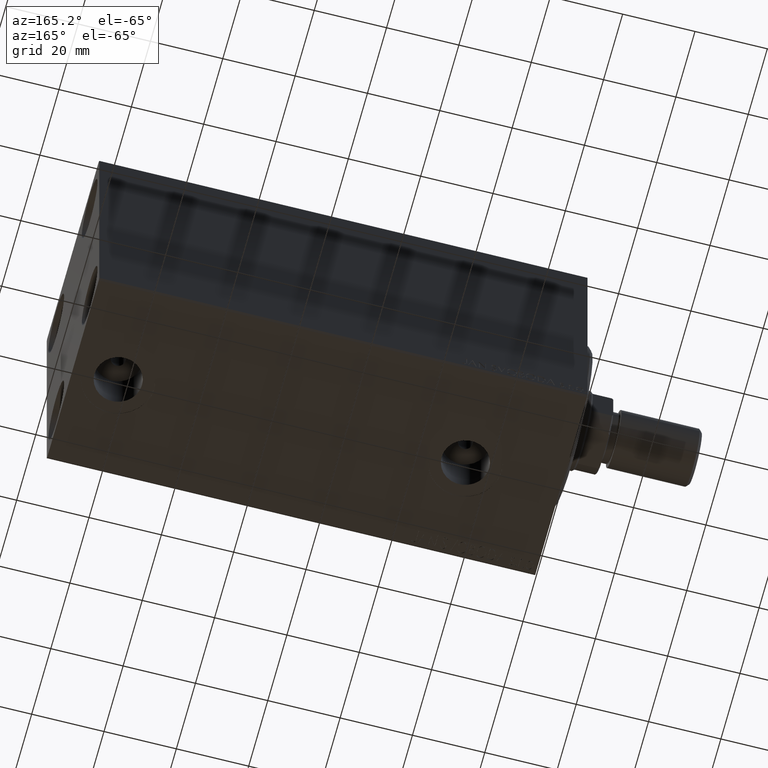
[diagram: clean part render]
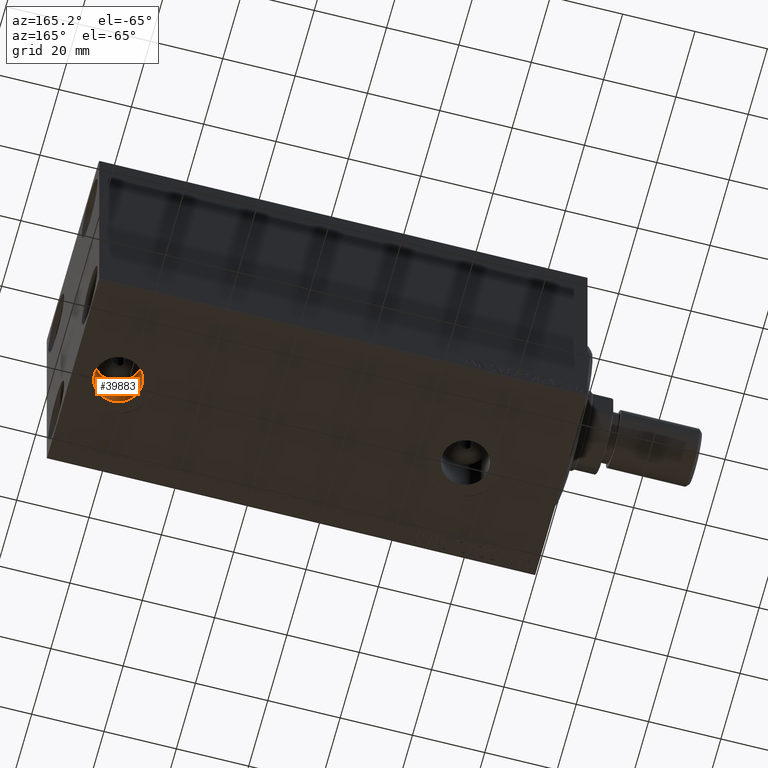
[diagram: same view with one face highlighted and labeled with its STEP entity id]
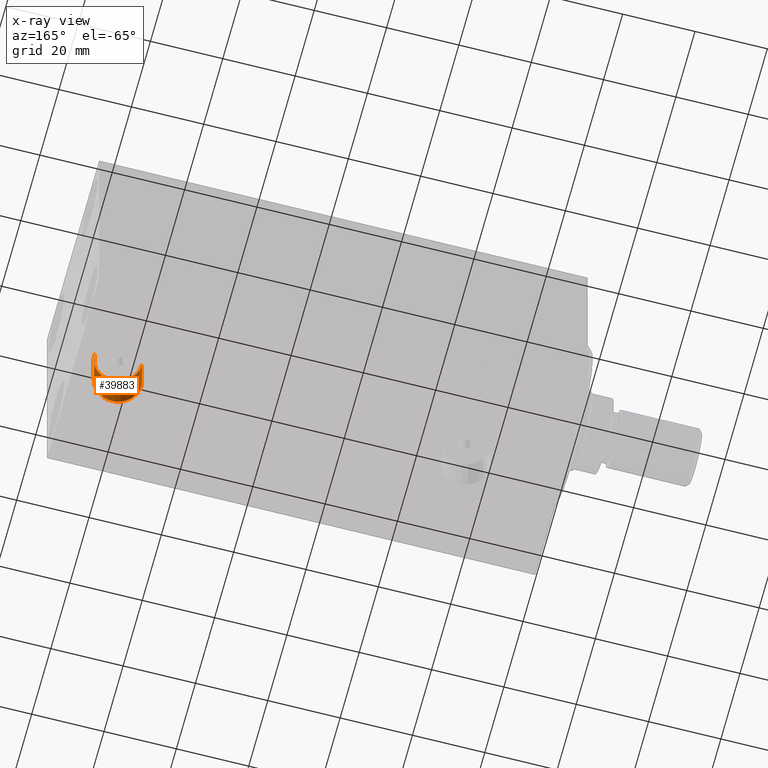
[diagram: x-ray of the same camera — body ghosted, the highlighted face saturated]
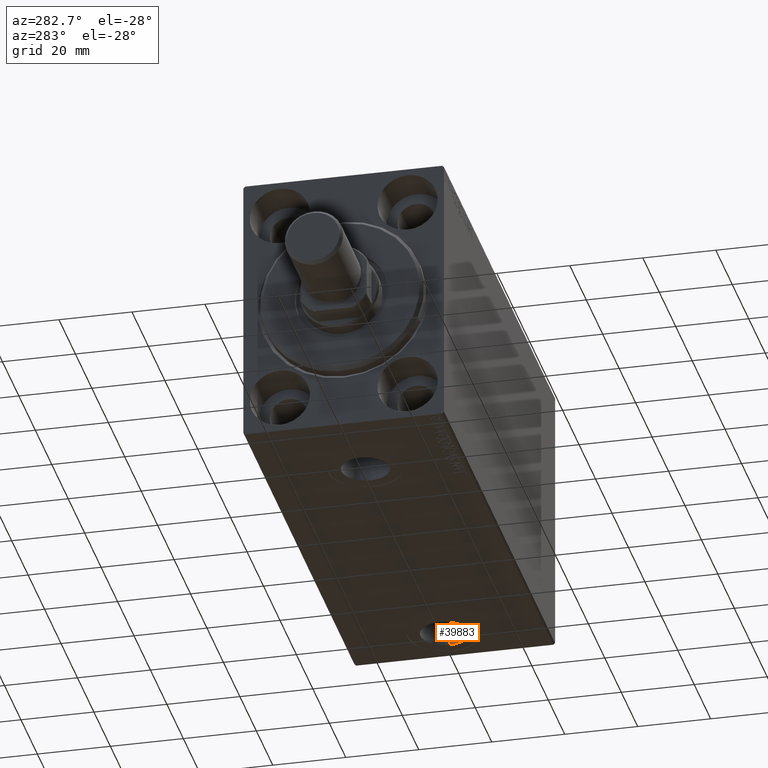
[diagram: same view with one face highlighted and labeled with its STEP entity id]
A machine part, auxiliary view. The second image highlights one B-rep face of the part: STEP entity #39883.
The next image is the same camera in x-ray: the body ghosted, the highlighted face saturated — about 0% of this face is hidden behind the body in this view.
A second angle (auxiliary view) of the same face is appended — the face is thin or edge-on in the first view.
In plain terms, the highlighted cylindrical surface (edge-blend (fillet) strip) has radius 6.58 mm, axis along (-0, -0, -1).
Its self-contained STEP definition (entity closure, byte-faithful):
#1371 = VERTEX_POINT ( 'NONE', #40597 ) ;
#1711 = CIRCLE ( 'NONE', #26835, 6.580000000000002736 ) ;
#1940 = VERTEX_POINT ( 'NONE', #17642 ) ;
#2314 = DIRECTION ( 'NONE',  ( -0.000000000000000000, -0.000000000000000000, -1.000000000000000000 ) ) ;
#2335 = VERTEX_POINT ( 'NONE', #14870 ) ;
#2532 = AXIS2_PLACEMENT_3D ( 'NONE', #26567, #2314, #40251 ) ;
#2615 = EDGE_CURVE ( 'NONE', #1940, #11091, #15032, .T. ) ;
#7859 = CARTESIAN_POINT ( 'NONE',  ( 115.9200000000000159, -1.446222058916133203E-14, -24.49999999999999289 ) ) ;
#8055 = ORIENTED_EDGE ( 'NONE', *, *, #8401, .T. ) ;
#8401 = EDGE_CURVE ( 'NONE', #2335, #1371, #36031, .T. ) ;
#8826 = FACE_OUTER_BOUND ( 'NONE', #15856, .T. ) ;
#11091 = VERTEX_POINT ( 'NONE', #20169 ) ;
#11887 = DIRECTION ( 'NONE',  ( -1.000000000000000000, 0.000000000000000000, 0.000000000000000000 ) ) ;
#13233 = EDGE_CURVE ( 'NONE', #1371, #11091, #1711, .T. ) ;
#14809 = DIRECTION ( 'NONE',  ( -0.000000000000000000, -0.000000000000000000, -1.000000000000000000 ) ) ;
#14870 = CARTESIAN_POINT ( 'NONE',  ( 129.0800000000000409, -1.365640299532237615E-14, -24.49999999999999289 ) ) ;
#15032 = LINE ( 'NONE', #7859, #19467 ) ;
#15477 = CARTESIAN_POINT ( 'NONE',  ( 122.5000000000000142, -1.446222058916133203E-14, -37.39999999999999858 ) ) ;
#15856 = EDGE_LOOP ( 'NONE', ( #16030, #8055, #28261, #29323 ) ) ;
#16030 = ORIENTED_EDGE ( 'NONE', *, *, #31491, .F. ) ;
#16790 = CIRCLE ( 'NONE', #25372, 6.580000000000002736 ) ;
#17642 = CARTESIAN_POINT ( 'NONE',  ( 115.9200000000000159, -1.446222058916133203E-14, -24.49999999999999289 ) ) ;
#19467 = VECTOR ( 'NONE', #14809, 1000.000000000000000 ) ;
#20169 = CARTESIAN_POINT ( 'NONE',  ( 115.9200000000000159, -1.446222058916133203E-14, -37.39999999999999858 ) ) ;
#25372 = AXIS2_PLACEMENT_3D ( 'NONE', #25589, #26029, #11887 ) ;
#25589 = CARTESIAN_POINT ( 'NONE',  ( 122.5000000000000142, -1.446222058916133203E-14, -24.49999999999999289 ) ) ;
#26029 = DIRECTION ( 'NONE',  ( 0.000000000000000000, 0.000000000000000000, -1.000000000000000000 ) ) ;
#26567 = CARTESIAN_POINT ( 'NONE',  ( 122.5000000000000142, -1.446222058916133203E-14, -24.49999999999999289 ) ) ;
#26835 = AXIS2_PLACEMENT_3D ( 'NONE', #15477, #39276, #39953 ) ;
#28197 = CARTESIAN_POINT ( 'NONE',  ( 129.0800000000000409, -1.365640299532237457E-14, -24.49999999999999289 ) ) ;
#28261 = ORIENTED_EDGE ( 'NONE', *, *, #13233, .T. ) ;
#29323 = ORIENTED_EDGE ( 'NONE', *, *, #2615, .F. ) ;
#31491 = EDGE_CURVE ( 'NONE', #2335, #1940, #16790, .T. ) ;
#35587 = DIRECTION ( 'NONE',  ( -0.000000000000000000, -0.000000000000000000, -1.000000000000000000 ) ) ;
#36031 = LINE ( 'NONE', #28197, #38962 ) ;
#36897 = CYLINDRICAL_SURFACE ( 'NONE', #2532, 6.580000000000002736 ) ;
#38962 = VECTOR ( 'NONE', #35587, 1000.000000000000000 ) ;
#39276 = DIRECTION ( 'NONE',  ( 0.000000000000000000, 0.000000000000000000, -1.000000000000000000 ) ) ;
#39883 = ADVANCED_FACE ( 'NONE', ( #8826 ), #36897, .F. ) ;
#39953 = DIRECTION ( 'NONE',  ( -1.000000000000000000, 0.000000000000000000, 0.000000000000000000 ) ) ;
#40251 = DIRECTION ( 'NONE',  ( -1.000000000000000000, 0.000000000000000000, 0.000000000000000000 ) ) ;
#40597 = CARTESIAN_POINT ( 'NONE',  ( 129.0800000000000409, -1.365640299532237615E-14, -37.39999999999999858 ) ) ;